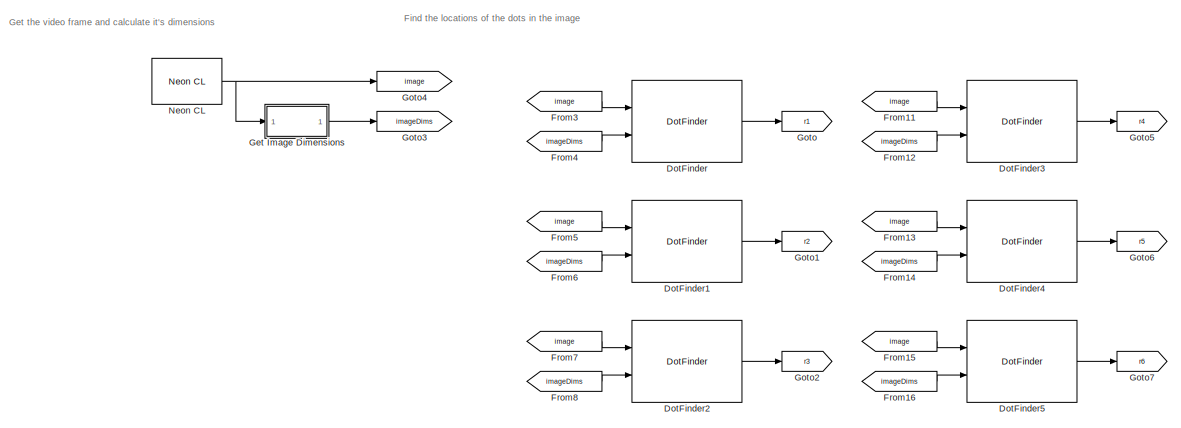
[diagram: root canvas - part 1/2, left side, full height]
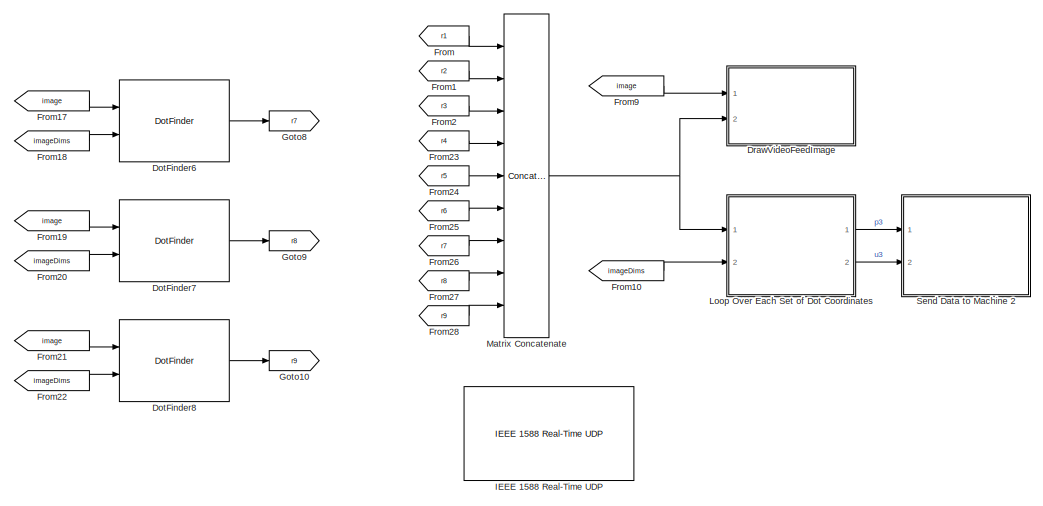
[diagram: root canvas - part 2/2, right side, full height]
MODEL slx_0edbdbcbf35e
KIND model
CONFIG AbsTol = auto
CONFIG EnableMultiTasking = on
CONFIG FixedStep = 0.01
CONFIG MaxStep = auto
CONFIG MinStep = auto
CONFIG RelTol = 1e-3
CONFIG SampleTimeConstraint = Unconstrained
CONFIG Solver = FixedStepDiscrete
CONFIG SolverName = FixedStepDiscrete
CONFIG StartTime = 0.0
CONFIG StopFcn = % stopCallback(gcs)
CONFIG StopTime = Inf
BLOCK [Reference] DotFinder  REF=dotFinder_ul/DotFinder
  Ports = [2, 1]
  SourceBlock = dotFinder_ul/DotFinder
BLOCK [Reference] DotFinder1  REF=dotFinder_ul/DotFinder
  Ports = [2, 1]
  SourceBlock = dotFinder_ul/DotFinder
BLOCK [Reference] DotFinder2  REF=dotFinder_ul/DotFinder
  Ports = [2, 1]
  SourceBlock = dotFinder_ul/DotFinder
BLOCK [Reference] DotFinder3  REF=dotFinder_ul/DotFinder
  Ports = [2, 1]
  SourceBlock = dotFinder_ul/DotFinder
BLOCK [Reference] DotFinder4  REF=dotFinder_ul/DotFinder
  Ports = [2, 1]
  SourceBlock = dotFinder_ul/DotFinder
BLOCK [Reference] DotFinder5  REF=dotFinder_ul/DotFinder
  Ports = [2, 1]
  SourceBlock = dotFinder_ul/DotFinder
BLOCK [Reference] DotFinder6  REF=dotFinder_ul/DotFinder
  Ports = [2, 1]
  SourceBlock = dotFinder_ul/DotFinder
BLOCK [Reference] DotFinder7  REF=dotFinder_ul/DotFinder
  Ports = [2, 1]
  SourceBlock = dotFinder_ul/DotFinder
BLOCK [Reference] DotFinder8  REF=dotFinder_ul/DotFinder
  Ports = [2, 1]
  SourceBlock = dotFinder_ul/DotFinder
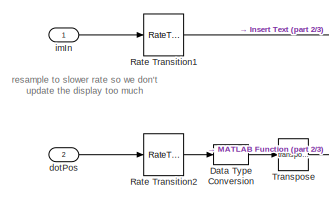
[diagram: DrawVideoFeedImage - part 1/3, left side, full height]
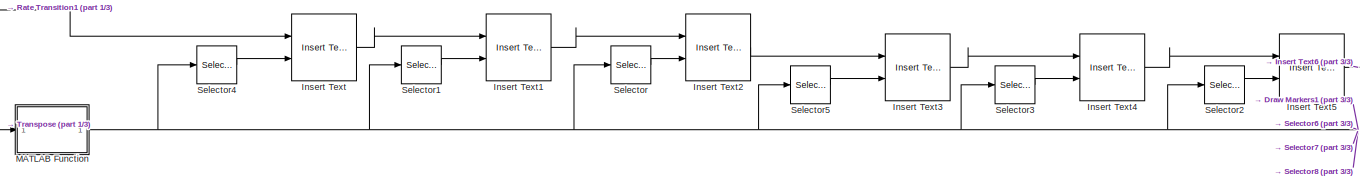
[diagram: DrawVideoFeedImage - part 2/3, central region]
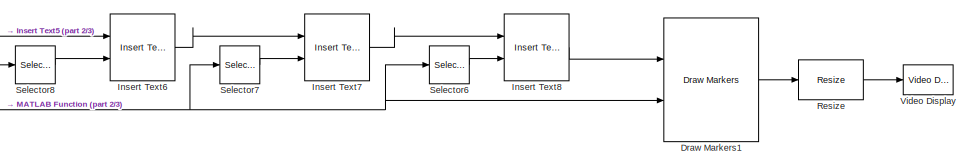
[diagram: DrawVideoFeedImage - part 3/3, middle right region]
BLOCK [SubSystem] DrawVideoFeedImage
  Ports = [2]
  RequestExecContextInheritance = off
BLOCK [DataTypeConversion] DrawVideoFeedImage/Data Type Conversion
  OutDataTypeStr = uint32
  RndMeth = Floor
  SaturateOnIntegerOverflow = off
BLOCK [Reference] DrawVideoFeedImage/Draw Markers1  REF=visiontextngfix/Draw Markers
  Ports = [2, 1]
  SourceBlock = visiontextngfix/Draw Markers
  SourceProductBaseCode = VP
  SourceProductName = Computer Vision System Toolbox
  SourceType = Draw Markers
BLOCK [Reference] DrawVideoFeedImage/Insert Text  REF=visiontextngfix/Insert Text
  Ports = [2, 1]
  SourceBlock = visiontextngfix/Insert Text
  SourceProductBaseCode = VP
  SourceProductName = Computer Vision System Toolbox
  SourceType = Insert Text
BLOCK [Reference] DrawVideoFeedImage/Insert Text1  REF=visiontextngfix/Insert Text
  Ports = [2, 1]
  SourceBlock = visiontextngfix/Insert Text
  SourceProductBaseCode = VP
  SourceProductName = Computer Vision System Toolbox
  SourceType = Insert Text
BLOCK [Reference] DrawVideoFeedImage/Insert Text2  REF=visiontextngfix/Insert Text
  Ports = [2, 1]
  SourceBlock = visiontextngfix/Insert Text
  SourceProductBaseCode = VP
  SourceProductName = Computer Vision System Toolbox
  SourceType = Insert Text
BLOCK [Reference] DrawVideoFeedImage/Insert Text3  REF=visiontextngfix/Insert Text
  Ports = [2, 1]
  SourceBlock = visiontextngfix/Insert Text
  SourceProductBaseCode = VP
  SourceProductName = Computer Vision System Toolbox
  SourceType = Insert Text
BLOCK [Reference] DrawVideoFeedImage/Insert Text4  REF=visiontextngfix/Insert Text
  Ports = [2, 1]
  SourceBlock = visiontextngfix/Insert Text
  SourceProductBaseCode = VP
  SourceProductName = Computer Vision System Toolbox
  SourceType = Insert Text
BLOCK [Reference] DrawVideoFeedImage/Insert Text5  REF=visiontextngfix/Insert Text
  Ports = [2, 1]
  SourceBlock = visiontextngfix/Insert Text
  SourceProductBaseCode = VP
  SourceProductName = Computer Vision System Toolbox
  SourceType = Insert Text
BLOCK [Reference] DrawVideoFeedImage/Insert Text6  REF=visiontextngfix/Insert Text
  Ports = [2, 1]
  SourceBlock = visiontextngfix/Insert Text
  SourceProductBaseCode = VP
  SourceProductName = Computer Vision System Toolbox
  SourceType = Insert Text
BLOCK [Reference] DrawVideoFeedImage/Insert Text7  REF=visiontextngfix/Insert Text
  Ports = [2, 1]
  SourceBlock = visiontextngfix/Insert Text
  SourceProductBaseCode = VP
  SourceProductName = Computer Vision System Toolbox
  SourceType = Insert Text
BLOCK [Reference] DrawVideoFeedImage/Insert Text8  REF=visiontextngfix/Insert Text
  Ports = [2, 1]
  SourceBlock = visiontextngfix/Insert Text
  SourceProductBaseCode = VP
  SourceProductName = Computer Vision System Toolbox
  SourceType = Insert Text
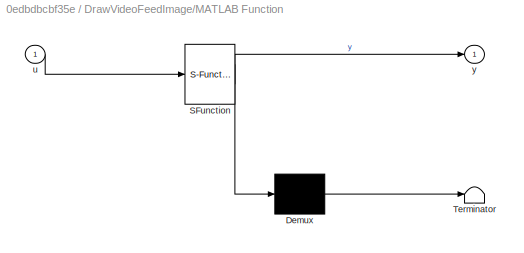
BLOCK [SubSystem] DrawVideoFeedImage/MATLAB Function
  ErrorFcn = Stateflow.Translate.translate
  PermitHierarchicalResolution = ExplicitOnly
  Ports = [1, 1]
  RequestExecContextInheritance = off
  SFBlockType = MATLAB Function
  TreatAsAtomicUnit = on
BLOCK [Demux] DrawVideoFeedImage/MATLAB Function/ Demux 
  Outputs = 1
  Ports = [1, 1]
BLOCK [S-Function] DrawVideoFeedImage/MATLAB Function/ SFunction 
  EnableBusSupport = on
  FunctionName = sf_sfun
  PortCounts = [1 2]
  Ports = [1, 2]
  SFcnIsStateOwnerBlock = off
  SFunctionDeploymentMode = off
  Tag = Stateflow S-Function model3_cm 1
BLOCK [Terminator] DrawVideoFeedImage/MATLAB Function/ Terminator 
BLOCK [Inport] DrawVideoFeedImage/MATLAB Function/u
  IconDisplay = Port number
BLOCK [Outport] DrawVideoFeedImage/MATLAB Function/y
  IconDisplay = Port number
BLOCK [RateTransition] DrawVideoFeedImage/Rate Transition1
  Deterministic = off
  OutPortSampleTime = 5*0.01
BLOCK [RateTransition] DrawVideoFeedImage/Rate Transition2
  Deterministic = off
  OutPortSampleTime = 5*0.01
BLOCK [Reference] DrawVideoFeedImage/Resize  REF=visiongeotforms/Resize
  Ports = [1, 1]
  SourceBlock = visiongeotforms/Resize
  SourceProductBaseCode = VP
  SourceProductName = Computer Vision System Toolbox
  SourceType = Resize
BLOCK [Selector] DrawVideoFeedImage/Selector
  IndexOptions = Index vector (dialog),Select all
  Indices = 3,1
  InputPortWidth = 3
  NumberOfDimensions = 2
  OutputSizes = 1,1
  Ports = [1, 1]
BLOCK [Selector] DrawVideoFeedImage/Selector1
  IndexOptions = Index vector (dialog),Select all
  Indices = 2,1
  InputPortWidth = 3
  NumberOfDimensions = 2
  OutputSizes = 1,1
  Ports = [1, 1]
BLOCK [Selector] DrawVideoFeedImage/Selector2
  IndexOptions = Index vector (dialog),Select all
  Indices = 6,1
  InputPortWidth = 3
  NumberOfDimensions = 2
  OutputSizes = 1,1
  Ports = [1, 1]
BLOCK [Selector] DrawVideoFeedImage/Selector3
  IndexOptions = Index vector (dialog),Select all
  Indices = 5,1
  InputPortWidth = 3
  NumberOfDimensions = 2
  OutputSizes = 1,1
  Ports = [1, 1]
BLOCK [Selector] DrawVideoFeedImage/Selector4
  IndexOptions = Index vector (dialog),Select all
  Indices = 1,1
  InputPortWidth = 3
  NumberOfDimensions = 2
  OutputSizes = 1,1
  Ports = [1, 1]
BLOCK [Selector] DrawVideoFeedImage/Selector5
  IndexOptions = Index vector (dialog),Select all
  Indices = 4,1
  InputPortWidth = 3
  NumberOfDimensions = 2
  OutputSizes = 1,1
  Ports = [1, 1]
BLOCK [Selector] DrawVideoFeedImage/Selector6
  IndexOptions = Index vector (dialog),Select all
  Indices = 9,1
  InputPortWidth = 3
  NumberOfDimensions = 2
  OutputSizes = 1,1
  Ports = [1, 1]
BLOCK [Selector] DrawVideoFeedImage/Selector7
  IndexOptions = Index vector (dialog),Select all
  Indices = 8,1
  InputPortWidth = 3
  NumberOfDimensions = 2
  OutputSizes = 1,1
  Ports = [1, 1]
BLOCK [Selector] DrawVideoFeedImage/Selector8
  IndexOptions = Index vector (dialog),Select all
  Indices = 7,1
  InputPortWidth = 3
  NumberOfDimensions = 2
  OutputSizes = 1,1
  Ports = [1, 1]
BLOCK [Math] DrawVideoFeedImage/Transpose
  Operator = transpose
  Ports = [1, 1]
BLOCK [Reference] DrawVideoFeedImage/Video Display  REF=xpcvideoutillib/Video Display
  Ports = [1]
  SourceBlock = xpcvideoutillib/Video Display
  SourceProductBaseCode = XP
  SourceProductName = Simulink Real-Time
  SourceType = Simulink Real-Time Video Display
BLOCK [Inport] DrawVideoFeedImage/dotPos
  IconDisplay = Port number
  Port = 2
BLOCK [Inport] DrawVideoFeedImage/imIn
  IconDisplay = Port number
BLOCK [From] From
  GotoTag = r1
BLOCK [From] From1
  GotoTag = r2
BLOCK [From] From10
  GotoTag = imageDims
BLOCK [From] From11
  GotoTag = image
BLOCK [From] From12
  GotoTag = imageDims
BLOCK [From] From13
  GotoTag = image
BLOCK [From] From14
  GotoTag = imageDims
BLOCK [From] From15
  GotoTag = image
BLOCK [From] From16
  GotoTag = imageDims
BLOCK [From] From17
  GotoTag = image
BLOCK [From] From18
  GotoTag = imageDims
BLOCK [From] From19
  GotoTag = image
BLOCK [From] From2
  GotoTag = r3
BLOCK [From] From20
  GotoTag = imageDims
BLOCK [From] From21
  GotoTag = image
BLOCK [From] From22
  GotoTag = imageDims
BLOCK [From] From23
  GotoTag = r4
BLOCK [From] From24
  GotoTag = r5
BLOCK [From] From25
  GotoTag = r6
BLOCK [From] From26
  GotoTag = r7
BLOCK [From] From27
  GotoTag = r8
BLOCK [From] From28
  GotoTag = r9
BLOCK [From] From3
  GotoTag = image
BLOCK [From] From4
  GotoTag = imageDims
BLOCK [From] From5
  GotoTag = image
BLOCK [From] From6
  GotoTag = imageDims
BLOCK [From] From7
  GotoTag = image
BLOCK [From] From8
  GotoTag = imageDims
BLOCK [From] From9
  GotoTag = image
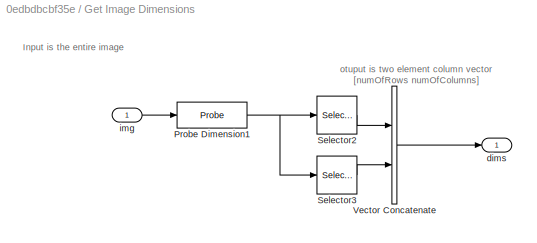
BLOCK [SubSystem] Get Image Dimensions
  Ports = [1, 1]
  RequestExecContextInheritance = off
BLOCK [Probe] Get Image Dimensions/Probe Dimension1
  Ports = [1, 1]
  ProbeComplexSignal = off
  ProbeSampleTime = off
  ProbeSignalDimensions = on
  ProbeWidth = off
BLOCK [Selector] Get Image Dimensions/Selector2
  IndexOptions = Index vector (dialog)
  Indices = 1
  InputPortWidth = 2
  OutputSizes = 1
  Ports = [1, 1]
BLOCK [Selector] Get Image Dimensions/Selector3
  IndexOptions = Index vector (dialog)
  Indices = 2
  InputPortWidth = 2
  OutputSizes = 1
  Ports = [1, 1]
BLOCK [Concatenate] Get Image Dimensions/Vector Concatenate
  Ports = [2, 1]
BLOCK [Outport] Get Image Dimensions/dims
  IconDisplay = Port number
BLOCK [Inport] Get Image Dimensions/img
  IconDisplay = Port number
BLOCK [Goto] Goto
  GotoTag = r1
BLOCK [Goto] Goto1
  GotoTag = r2
BLOCK [Goto] Goto10
  GotoTag = r9
BLOCK [Goto] Goto2
  GotoTag = r3
BLOCK [Goto] Goto3
  GotoTag = imageDims
BLOCK [Goto] Goto4
  GotoTag = image
BLOCK [Goto] Goto5
  GotoTag = r4
BLOCK [Goto] Goto6
  GotoTag = r5
BLOCK [Goto] Goto7
  GotoTag = r6
BLOCK [Goto] Goto8
  GotoTag = r7
BLOCK [Goto] Goto9
  GotoTag = r8
BLOCK [Reference] IEEE 1588 Real-Time UDP  REF=ptplib/IEEE 1588 Real-Time UDP
  Ports = []
  Priority = 0
  SourceBlock = ptplib/IEEE 1588 Real-Time UDP
  SourceProductBaseCode = XP
  SourceProductName = Simulink Real-Time
  SourceType = IEEE1588_UDP
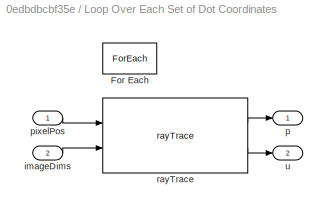
BLOCK [SubSystem] Loop Over Each Set of Dot Coordinates
  Ports = [2, 2]
  RequestExecContextInheritance = off
  TreatAsAtomicUnit = on
BLOCK [ForEach] Loop Over Each Set of Dot Coordinates/For Each
  DisableCoverage = on
  IndexMode = One-based
  Ports = []
BLOCK [Inport] Loop Over Each Set of Dot Coordinates/imageDims
  IconDisplay = Port number
  Port = 2
BLOCK [Outport] Loop Over Each Set of Dot Coordinates/p
  ConcatenationDimension = 2
  IconDisplay = Port number
BLOCK [Inport] Loop Over Each Set of Dot Coordinates/pixelPos
  IconDisplay = Port number
  Partition = on
  PartitionDimension = 2
  PartitionOffset = 0
  PartitionWidth = 1
BLOCK [Reference] Loop Over Each Set of Dot Coordinates/rayTrace  REF=rayTrace_ul/rayTrace
  Ports = [2, 2]
  SourceBlock = rayTrace_ul/rayTrace
BLOCK [Outport] Loop Over Each Set of Dot Coordinates/u
  ConcatenationDimension = 2
  IconDisplay = Port number
  Port = 2
BLOCK [Concatenate] Matrix Concatenate
  ConcatenateDimension = 2
  Mode = Multidimensional array
  NumInputs = 9
  Ports = [9, 1]
BLOCK [Reference] Neon CL   REF=xpcbitflowlib/Neon CL 
  Ports = [0, 1]
  SourceBlock = xpcbitflowlib/Neon CL
  SourceProductName = Simulink Real-Time: Speedgoat I/O Driver Library
  SourceType = bfneon
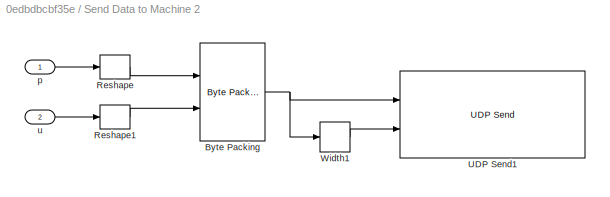
BLOCK [SubSystem] Send Data to Machine 2
  Ports = [2]
  RequestExecContextInheritance = off
BLOCK [Reference] Send Data to Machine 2/Byte Packing  REF=xpcutilitieslib/Byte Packing 
  Ports = [2, 1]
  SourceBlock = xpcutilitieslib/Byte Packing
  SourceProductBaseCode = XP
  SourceProductName = Simulink Real-Time
  SourceType = xpcbytepacking
BLOCK [Reshape] Send Data to Machine 2/Reshape
  Ports = [1, 1]
BLOCK [Reshape] Send Data to Machine 2/Reshape1
  Ports = [1, 1]
BLOCK [Reference] Send Data to Machine 2/UDP Send1  REF=xpcrtudplib/UDP Send
  Ports = [2]
  SourceBlock = xpcrtudplib/UDP Send
  SourceProductBaseCode = XP
  SourceProductName = Simulink Real-Time
  SourceType = slrtudpsend
BLOCK [Width] Send Data to Machine 2/Width1
BLOCK [Inport] Send Data to Machine 2/p
  IconDisplay = Port number
BLOCK [Inport] Send Data to Machine 2/u
  IconDisplay = Port number
  Port = 2
ANNOTATION (root): Find the locations of the dots in the image
ANNOTATION (root): Get the video frame and calculate it's dimensions
ANNOTATION DrawVideoFeedImage: resample to slower rate so we don't update the display too much
ANNOTATION Get Image Dimensions: Input is the entire image
ANNOTATION Get Image Dimensions: otuput is two element column vector [numOfRows numOfColumns]
LINE DotFinder1:1 -> Goto1:1
LINE DotFinder2:1 -> Goto2:1
LINE DotFinder3:1 -> Goto5:1
LINE DotFinder4:1 -> Goto6:1
LINE DotFinder5:1 -> Goto7:1
LINE DotFinder6:1 -> Goto8:1
LINE DotFinder7:1 -> Goto9:1
LINE DotFinder8:1 -> Goto10:1
LINE DotFinder:1 -> Goto:1
LINE DrawVideoFeedImage/Data Type Conversion:1 -> DrawVideoFeedImage/Transpose:1
LINE DrawVideoFeedImage/Draw Markers1:1 -> DrawVideoFeedImage/Resize:1
LINE DrawVideoFeedImage/Insert Text1:1 -> DrawVideoFeedImage/Insert Text2:1
LINE DrawVideoFeedImage/Insert Text2:1 -> DrawVideoFeedImage/Insert Text3:1
LINE DrawVideoFeedImage/Insert Text3:1 -> DrawVideoFeedImage/Insert Text4:1
LINE DrawVideoFeedImage/Insert Text4:1 -> DrawVideoFeedImage/Insert Text5:1
LINE DrawVideoFeedImage/Insert Text5:1 -> DrawVideoFeedImage/Insert Text6:1
LINE DrawVideoFeedImage/Insert Text6:1 -> DrawVideoFeedImage/Insert Text7:1
LINE DrawVideoFeedImage/Insert Text7:1 -> DrawVideoFeedImage/Insert Text8:1
LINE DrawVideoFeedImage/Insert Text8:1 -> DrawVideoFeedImage/Draw Markers1:1
LINE DrawVideoFeedImage/Insert Text:1 -> DrawVideoFeedImage/Insert Text1:1
NET DrawVideoFeedImage/MATLAB Function:1 -> DrawVideoFeedImage/Draw Markers1:2, DrawVideoFeedImage/Selector1:1, DrawVideoFeedImage/Selector2:1, DrawVideoFeedImage/Selector3:1, DrawVideoFeedImage/Selector4:1, DrawVideoFeedImage/Selector5:1, DrawVideoFeedImage/Selector6:1, DrawVideoFeedImage/Selector7:1, DrawVideoFeedImage/Selector8:1, DrawVideoFeedImage/Selector:1
LINE DrawVideoFeedImage/Rate Transition1:1 -> DrawVideoFeedImage/Insert Text:1
LINE DrawVideoFeedImage/Rate Transition2:1 -> DrawVideoFeedImage/Data Type Conversion:1
LINE DrawVideoFeedImage/Resize:1 -> DrawVideoFeedImage/Video Display:1
LINE DrawVideoFeedImage/Selector1:1 -> DrawVideoFeedImage/Insert Text1:2
LINE DrawVideoFeedImage/Selector2:1 -> DrawVideoFeedImage/Insert Text5:2
LINE DrawVideoFeedImage/Selector3:1 -> DrawVideoFeedImage/Insert Text4:2
LINE DrawVideoFeedImage/Selector4:1 -> DrawVideoFeedImage/Insert Text:2
LINE DrawVideoFeedImage/Selector5:1 -> DrawVideoFeedImage/Insert Text3:2
LINE DrawVideoFeedImage/Selector6:1 -> DrawVideoFeedImage/Insert Text8:2
LINE DrawVideoFeedImage/Selector7:1 -> DrawVideoFeedImage/Insert Text7:2
LINE DrawVideoFeedImage/Selector8:1 -> DrawVideoFeedImage/Insert Text6:2
LINE DrawVideoFeedImage/Selector:1 -> DrawVideoFeedImage/Insert Text2:2
LINE DrawVideoFeedImage/Transpose:1 -> DrawVideoFeedImage/MATLAB Function:1
LINE DrawVideoFeedImage/dotPos:1 -> DrawVideoFeedImage/Rate Transition2:1
LINE DrawVideoFeedImage/imIn:1 -> DrawVideoFeedImage/Rate Transition1:1
LINE From10:1 -> Loop Over Each Set of Dot Coordinates:2
LINE From11:1 -> DotFinder3:1
LINE From12:1 -> DotFinder3:2
LINE From13:1 -> DotFinder4:1
LINE From14:1 -> DotFinder4:2
LINE From15:1 -> DotFinder5:1
LINE From16:1 -> DotFinder5:2
LINE From17:1 -> DotFinder6:1
LINE From18:1 -> DotFinder6:2
LINE From19:1 -> DotFinder7:1
LINE From1:1 -> Matrix Concatenate:2
LINE From20:1 -> DotFinder7:2
LINE From21:1 -> DotFinder8:1
LINE From22:1 -> DotFinder8:2
LINE From23:1 -> Matrix Concatenate:4
LINE From24:1 -> Matrix Concatenate:5
LINE From25:1 -> Matrix Concatenate:6
LINE From26:1 -> Matrix Concatenate:7
LINE From27:1 -> Matrix Concatenate:8
LINE From28:1 -> Matrix Concatenate:9
LINE From2:1 -> Matrix Concatenate:3
LINE From3:1 -> DotFinder:1
LINE From4:1 -> DotFinder:2
LINE From5:1 -> DotFinder1:1
LINE From6:1 -> DotFinder1:2
LINE From7:1 -> DotFinder2:1
LINE From8:1 -> DotFinder2:2
LINE From9:1 -> DrawVideoFeedImage:1
LINE From:1 -> Matrix Concatenate:1
NET Get Image Dimensions/Probe Dimension1:1 -> Get Image Dimensions/Selector2:1, Get Image Dimensions/Selector3:1
LINE Get Image Dimensions/Selector2:1 -> Get Image Dimensions/Vector Concatenate:1
LINE Get Image Dimensions/Selector3:1 -> Get Image Dimensions/Vector Concatenate:2
LINE Get Image Dimensions/Vector Concatenate:1 -> Get Image Dimensions/dims:1
LINE Get Image Dimensions/img:1 -> Get Image Dimensions/Probe Dimension1:1
LINE Get Image Dimensions:1 -> Goto3:1
LINE Loop Over Each Set of Dot Coordinates/imageDims:1 -> Loop Over Each Set of Dot Coordinates/rayTrace:2
LINE Loop Over Each Set of Dot Coordinates/pixelPos:1 -> Loop Over Each Set of Dot Coordinates/rayTrace:1
LINE Loop Over Each Set of Dot Coordinates/rayTrace:1 -> Loop Over Each Set of Dot Coordinates/p:1
LINE Loop Over Each Set of Dot Coordinates/rayTrace:2 -> Loop Over Each Set of Dot Coordinates/u:1
LINE Loop Over Each Set of Dot Coordinates:1 -> Send Data to Machine 2:1
LINE Loop Over Each Set of Dot Coordinates:2 -> Send Data to Machine 2:2
NET Matrix Concatenate:1 -> DrawVideoFeedImage:2, Loop Over Each Set of Dot Coordinates:1
NET Neon CL :1 -> Get Image Dimensions:1, Goto4:1
NET Send Data to Machine 2/Byte Packing:1 -> Send Data to Machine 2/UDP Send1:1, Send Data to Machine 2/Width1:1
LINE Send Data to Machine 2/Reshape1:1 -> Send Data to Machine 2/Byte Packing:2
LINE Send Data to Machine 2/Reshape:1 -> Send Data to Machine 2/Byte Packing:1
LINE Send Data to Machine 2/Width1:1 -> Send Data to Machine 2/UDP Send1:2
LINE Send Data to Machine 2/p:1 -> Send Data to Machine 2/Reshape:1
LINE Send Data to Machine 2/u:1 -> Send Data to Machine 2/Reshape1:1
note: NET lines group one-source signal fan-out (src -> all destinations, sorted); 1:1 wires keep LINE
CHART DrawVideoFeedImage/MATLAB Function states=1 transitions=1
  STATE_LABEL 'eML_blk_kernel()'
  STATE_LABEL 'SCRIPT:\nfunction y = fcn(u)\ny = u;\ny(:,1) = u(:,2);\ny(:,2) = u(:,1);\n\n'
